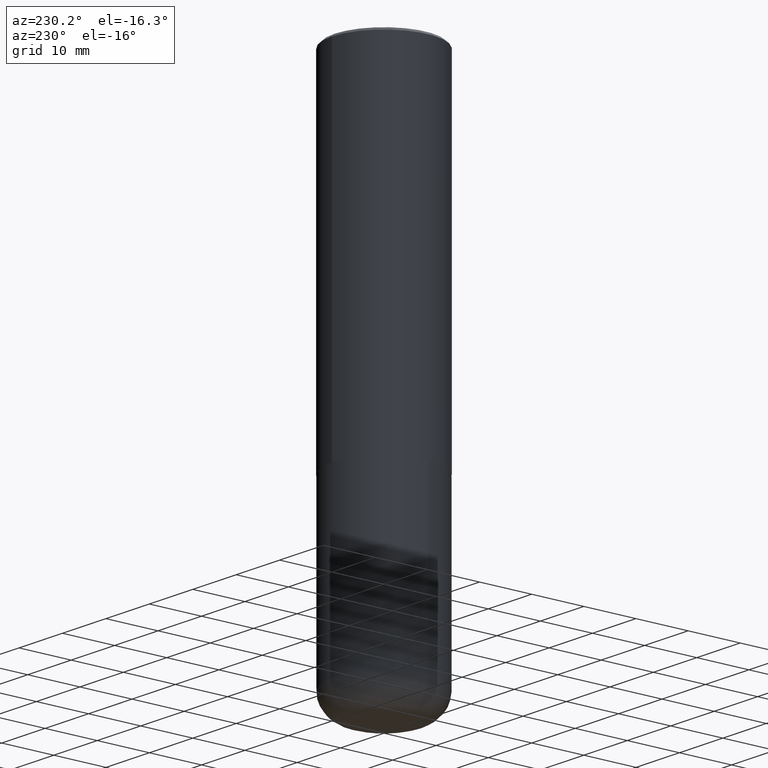
[diagram: clean part render]
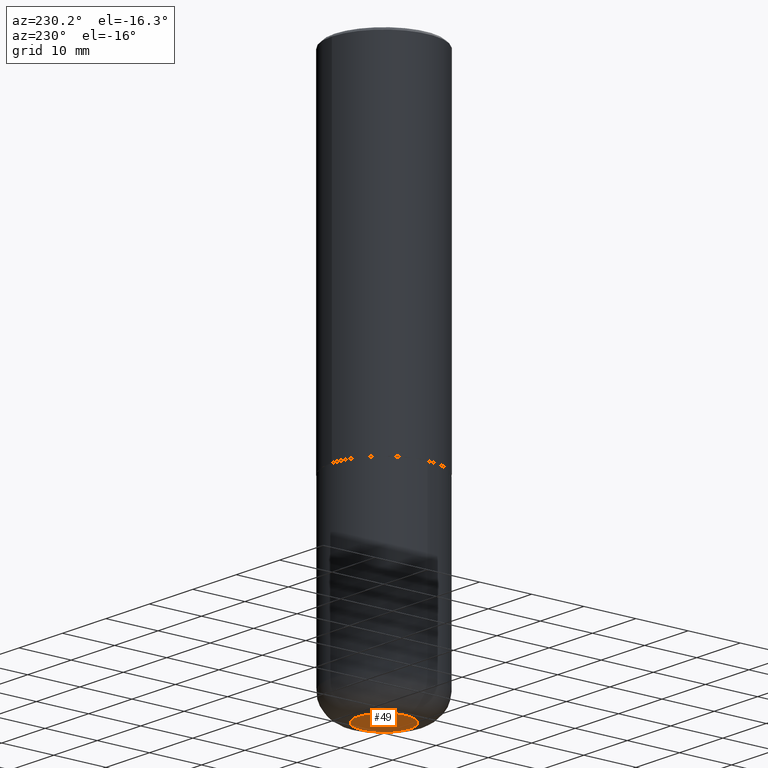
[diagram: same view with one face highlighted and labeled with its STEP entity id]
A machine part, auxiliary view. The second image highlights one B-rep face of the part: STEP entity #49.
In plain terms, the highlighted planar face has unit normal (0, -0, -1).
Its self-contained STEP definition (entity closure, byte-faithful):
#34 = CIRCLE ( 'NONE', #274, 0.1968000000000000582 ) ;
#45 = CARTESIAN_POINT ( 'NONE',  ( -0.1968000000000000582, -1.185425657675245696E-14, -4.094500000000000028 ) ) ;
#49 = ADVANCED_FACE ( 'NONE', ( #50 ), #340, .T. ) ;
#50 = FACE_OUTER_BOUND ( 'NONE', #389, .T. ) ;
#64 = VERTEX_POINT ( 'NONE', #45 ) ;
#108 = EDGE_CURVE ( 'NONE', #324, #64, #34, .T. ) ;
#137 = DIRECTION ( 'NONE',  ( -2.445468806185136597E-29, 3.491481338843145583E-15, 1.000000000000000000 ) ) ;
#151 = CARTESIAN_POINT ( 'NONE',  ( 0.1968000000000000582, -1.567011739686191959E-14, -4.094500000000000028 ) ) ;
#154 = ORIENTED_EDGE ( 'NONE', *, *, #108, .F. ) ;
#168 = CARTESIAN_POINT ( 'NONE',  ( 1.001297202692504215E-28, -1.429587034189326149E-14, -4.094500000000000028 ) ) ;
#191 = CIRCLE ( 'NONE', #347, 0.1968000000000000582 ) ;
#199 = CARTESIAN_POINT ( 'NONE',  ( 1.001297202692504215E-28, -1.429587034189326149E-14, -4.094500000000000028 ) ) ;
#200 = AXIS2_PLACEMENT_3D ( 'NONE', #199, #335, #273 ) ;
#201 = DIRECTION ( 'NONE',  ( -2.445468806185136597E-29, 3.491481338843145583E-15, 1.000000000000000000 ) ) ;
#245 = DIRECTION ( 'NONE',  ( 1.000000000000000000, -6.982962677686269866E-15, 0.000000000000000000 ) ) ;
#273 = DIRECTION ( 'NONE',  ( -1.000000000000000000, 6.982962677686265922E-15, -4.876176775795935793E-29 ) ) ;
#274 = AXIS2_PLACEMENT_3D ( 'NONE', #168, #137, #245 ) ;
#324 = VERTEX_POINT ( 'NONE', #151 ) ;
#328 = CARTESIAN_POINT ( 'NONE',  ( 1.001297202692504215E-28, -1.429587034189326149E-14, -4.094500000000000028 ) ) ;
#329 = ORIENTED_EDGE ( 'NONE', *, *, #376, .F. ) ;
#335 = DIRECTION ( 'NONE',  ( 2.438088387897960049E-29, -3.491481338843145188E-15, -1.000000000000000000 ) ) ;
#340 = PLANE ( 'NONE',  #200 ) ;
#347 = AXIS2_PLACEMENT_3D ( 'NONE', #328, #201, #362 ) ;
#362 = DIRECTION ( 'NONE',  ( 1.000000000000000000, -6.982962677686269866E-15, 0.000000000000000000 ) ) ;
#376 = EDGE_CURVE ( 'NONE', #64, #324, #191, .T. ) ;
#389 = EDGE_LOOP ( 'NONE', ( #154, #329 ) ) ;